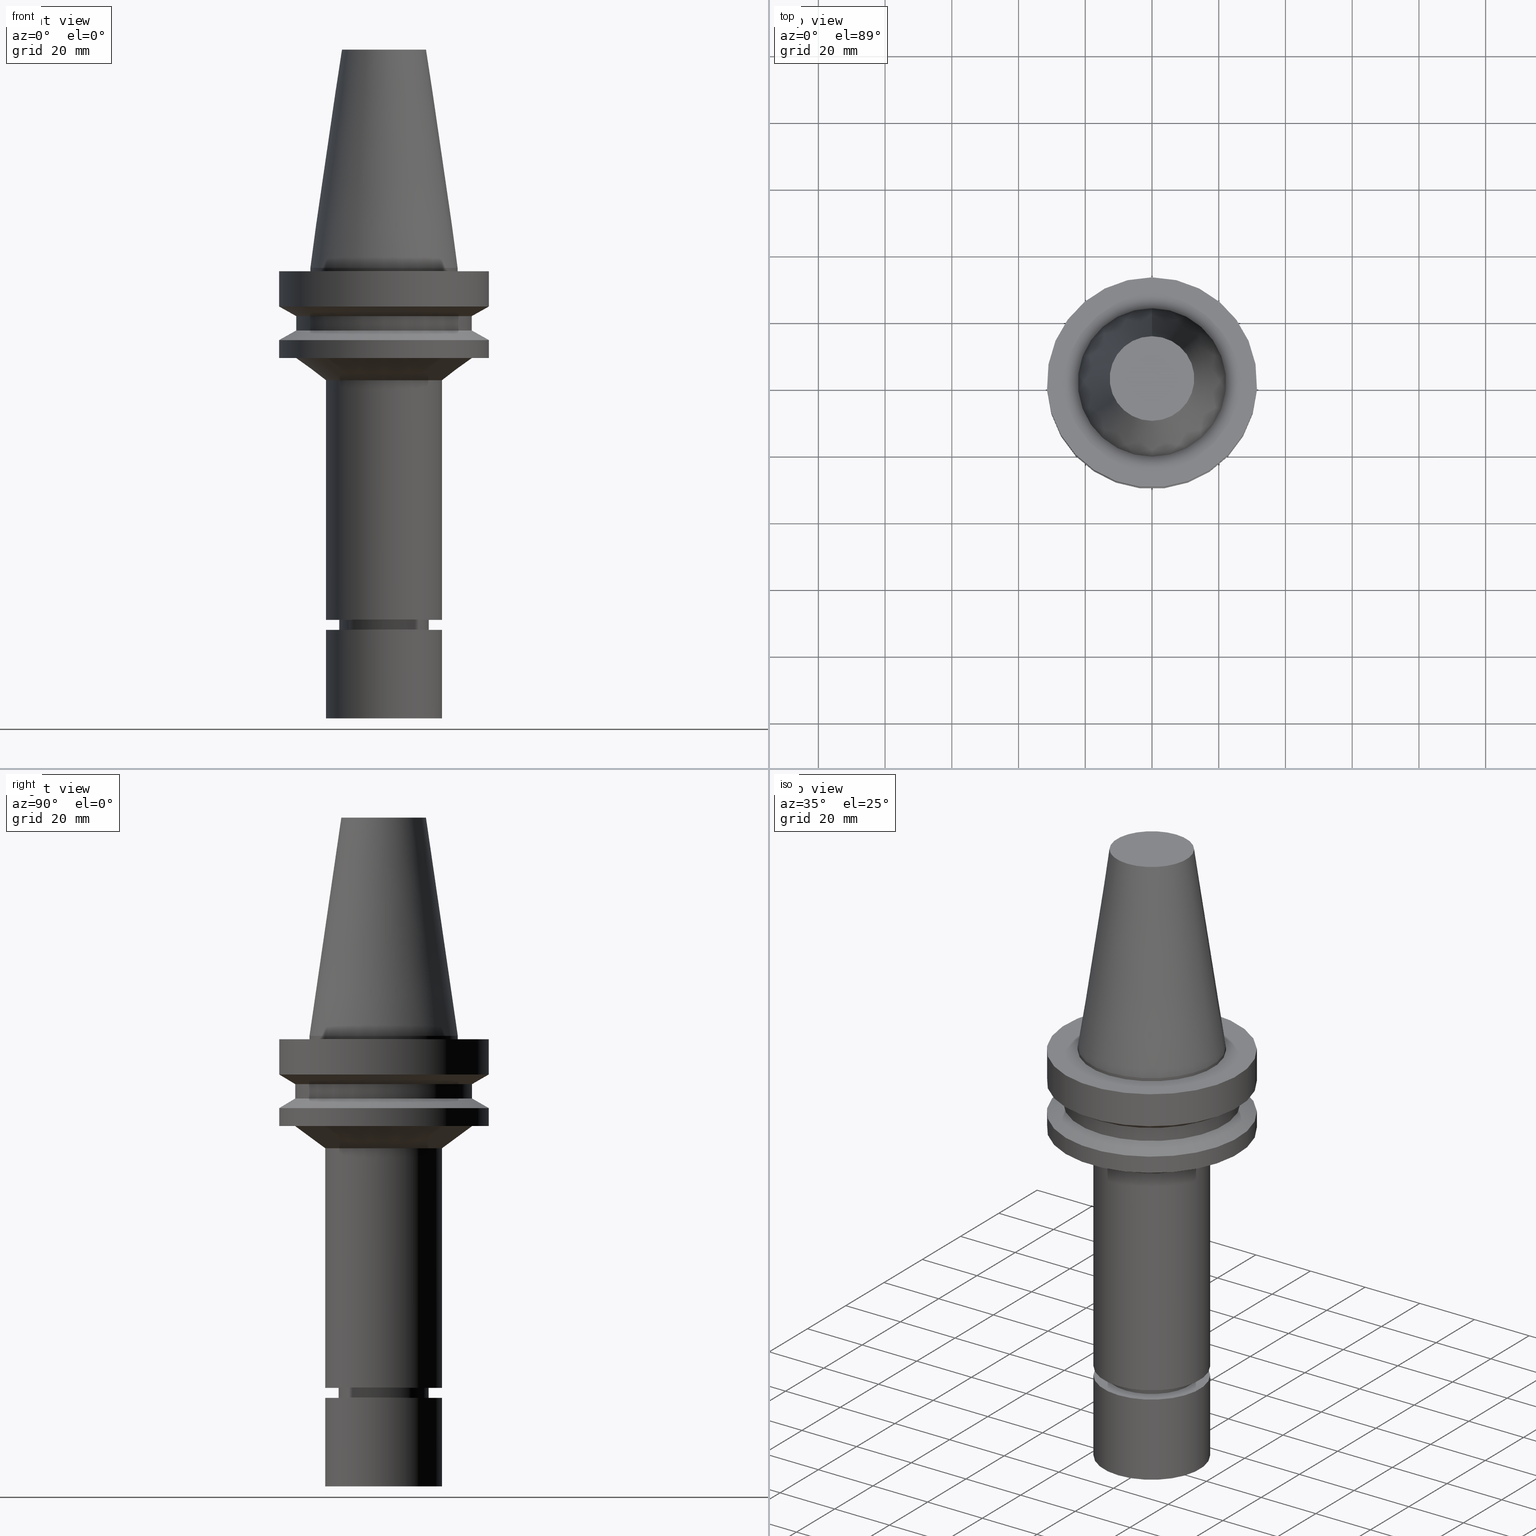
[diagram: canonical four-view strip — front | top / right | iso, engineering-drawing reading convention]
A machine part, canonical four-view strip (front | top / right | iso — engineering-drawing reading convention). The complete STEP part file that produces these views, byte-faithful:
ISO-10303-21;
HEADER;
FILE_DESCRIPTION((''),'1');
FILE_NAME('V:/90_\X2\53D65F9730C730FC30BF\X0\/00_\X2\6DE18DEF30C730FC30BF\X0\/ALL/BBT-BKUS\X2\FF76FF80FF9BFF78FF9E752852A05DE556F3\X0\201801/BBT40-MEGAER/BBT40-MEGAER20-135NL.stp','2018-02-07T02:03:15',(''),(''),'Spatial Interop R21 SP3','Kubotek KeyCreator 2011 V10.0.2 (22737)',' ');
FILE_SCHEMA(('automotive_design'));
ENDSEC;
DATA;
#1=MECHANICAL_DESIGN_GEOMETRIC_PRESENTATION_REPRESENTATION(' ',(#14,#15,#16,#17,#18,#19,#20,#21,#22,#23,#24,#25,#26,#27,#28,#29,#30,#31,#32,#33,#34,#35,#36,#37,#38,#39,#40,#41,#42,#43,#44,#45,#46,#47,#48,#49,#50,#51,#52,#53,#54,#55),#10);
#2=PRODUCT_DEFINITION_CONTEXT('',#56,'design');
#3=APPLICATION_PROTOCOL_DEFINITION('INTERNATIONAL STANDARD','automotive_design',1994,#56);
#4=PRODUCT_CATEGORY_RELATIONSHIP('NONE','NONE',#57,#58);
#5=SHAPE_DEFINITION_REPRESENTATION(#59,#60);
#6=PRODUCT_DEFINITION_CONTEXT('',#61,'design');
#7=APPLICATION_PROTOCOL_DEFINITION('INTERNATIONAL STANDARD','automotive_design',1994,#61);
#8=PRODUCT_CATEGORY_RELATIONSHIP('NONE','NONE',#62,#63);
#9=SHAPE_DEFINITION_REPRESENTATION(#64,#65);
#10= (GEOMETRIC_REPRESENTATION_CONTEXT(3)GLOBAL_UNCERTAINTY_ASSIGNED_CONTEXT((#68))GLOBAL_UNIT_ASSIGNED_CONTEXT((#70,#71,#72))REPRESENTATION_CONTEXT('NONE','WORKSPACE'));
#14=STYLED_ITEM('',(#74),#75);
#15=STYLED_ITEM('',(#76,#77),#78);
#16=STYLED_ITEM('',(#79,#80),#81);
#17=STYLED_ITEM('',(#82),#83);
#18=STYLED_ITEM('',(#84),#85);
#19=STYLED_ITEM('',(#86,#87),#88);
#20=STYLED_ITEM('',(#89),#90);
#21=STYLED_ITEM('',(#91),#92);
#22=STYLED_ITEM('',(#93),#94);
#23=STYLED_ITEM('',(#95,#96),#97);
#24=STYLED_ITEM('',(#98),#99);
#25=STYLED_ITEM('',(#100),#101);
#26=STYLED_ITEM('',(#102,#103),#104);
#27=STYLED_ITEM('',(#105,#106),#107);
#28=STYLED_ITEM('',(#108,#109),#110);
#29=STYLED_ITEM('',(#111,#112),#113);
#30=STYLED_ITEM('',(#114,#115),#116);
#31=STYLED_ITEM('',(#117,#118),#119);
#32=STYLED_ITEM('',(#120,#121),#122);
#33=STYLED_ITEM('',(#123,#124),#125);
#34=STYLED_ITEM('',(#126,#127),#128);
#35=STYLED_ITEM('',(#129,#130),#131);
#36=STYLED_ITEM('',(#132),#133);
#37=STYLED_ITEM('',(#134),#135);
#38=STYLED_ITEM('',(#136),#137);
#39=STYLED_ITEM('',(#138),#139);
#40=STYLED_ITEM('',(#140),#141);
#41=STYLED_ITEM('',(#142),#143);
#42=STYLED_ITEM('',(#144,#145),#146);
#43=STYLED_ITEM('',(#147),#148);
#44=STYLED_ITEM('',(#149,#150),#151);
#45=STYLED_ITEM('',(#152,#153),#154);
#46=STYLED_ITEM('',(#155,#156),#157);
#47=STYLED_ITEM('',(#158),#159);
#48=STYLED_ITEM('',(#160),#161);
#49=STYLED_ITEM('',(#162,#163),#164);
#50=STYLED_ITEM('',(#165,#166),#167);
#51=STYLED_ITEM('',(#168),#169);
#52=STYLED_ITEM('',(#170,#171),#172);
#53=STYLED_ITEM('',(#173,#174),#175);
#54=STYLED_ITEM('',(#176),#177);
#55=STYLED_ITEM('',(#178,#179),#180);
#56=APPLICATION_CONTEXT(' ');
#57=PRODUCT_CATEGORY('part','NONE');
#58=PRODUCT_RELATED_PRODUCT_CATEGORY('detail',' ',(#181));
#59=PRODUCT_DEFINITION_SHAPE('NONE','NONE',#182);
#60=ADVANCED_BREP_SHAPE_REPRESENTATION('Unnamed[1]',(#172,#183),#10);
#61=APPLICATION_CONTEXT(' ');
#62=PRODUCT_CATEGORY('part','NONE');
#63=PRODUCT_RELATED_PRODUCT_CATEGORY('detail',' ',(#184));
#64=PRODUCT_DEFINITION_SHAPE('NONE','NONE',#185);
#65=ADVANCED_BREP_SHAPE_REPRESENTATION('Unnamed[1]',(#157,#186),#10);
#68=UNCERTAINTY_MEASURE_WITH_UNIT(LENGTH_MEASURE(1.0E-006),#70,'','');
#70= (CONVERSION_BASED_UNIT('MILLIMETRE',#189)LENGTH_UNIT()NAMED_UNIT(#192));
#71= (NAMED_UNIT(#194)PLANE_ANGLE_UNIT()SI_UNIT($,.RADIAN.));
#72= (NAMED_UNIT(#194)SOLID_ANGLE_UNIT()SI_UNIT($,.STERADIAN.));
#74=PRESENTATION_STYLE_ASSIGNMENT((#200));
#75=EDGE_CURVE('Unnamed[1]',#201,#201,#202,.T.);
#76=PRESENTATION_STYLE_ASSIGNMENT((#203));
#77=PRESENTATION_STYLE_ASSIGNMENT((#204));
#78=ADVANCED_FACE('Unnamed[1]',(#205,#206),#207,.T.);
#79=PRESENTATION_STYLE_ASSIGNMENT((#208));
#80=PRESENTATION_STYLE_ASSIGNMENT((#209));
#81=ADVANCED_FACE('Unnamed[1]',(#210),#211,.T.);
#82=PRESENTATION_STYLE_ASSIGNMENT((#212));
#83=EDGE_CURVE('Unnamed[1]',#213,#213,#214,.T.);
#84=PRESENTATION_STYLE_ASSIGNMENT((#215));
#85=EDGE_CURVE('Unnamed[1]',#216,#216,#217,.T.);
#86=PRESENTATION_STYLE_ASSIGNMENT((#218));
#87=PRESENTATION_STYLE_ASSIGNMENT((#219));
#88=ADVANCED_FACE('Unnamed[1]',(#220,#221),#222,.T.);
#89=PRESENTATION_STYLE_ASSIGNMENT((#223));
#90=EDGE_CURVE('Unnamed[1]',#224,#224,#225,.T.);
#91=PRESENTATION_STYLE_ASSIGNMENT((#226));
#92=EDGE_CURVE('Unnamed[1]',#227,#227,#228,.T.);
#93=PRESENTATION_STYLE_ASSIGNMENT((#229));
#94=EDGE_CURVE('Unnamed[1]',#230,#230,#231,.T.);
#95=PRESENTATION_STYLE_ASSIGNMENT((#232));
#96=PRESENTATION_STYLE_ASSIGNMENT((#233));
#97=ADVANCED_FACE('Unnamed[1]',(#234,#235),#236,.T.);
#98=PRESENTATION_STYLE_ASSIGNMENT((#237));
#99=EDGE_CURVE('Unnamed[1]',#238,#238,#239,.T.);
#100=PRESENTATION_STYLE_ASSIGNMENT((#240));
#101=EDGE_CURVE('Unnamed[1]',#241,#241,#242,.T.);
#102=PRESENTATION_STYLE_ASSIGNMENT((#243));
#103=PRESENTATION_STYLE_ASSIGNMENT((#244));
#104=ADVANCED_FACE('Unnamed[1]',(#245,#246),#247,.T.);
#105=PRESENTATION_STYLE_ASSIGNMENT((#248));
#106=PRESENTATION_STYLE_ASSIGNMENT((#249));
#107=ADVANCED_FACE('Unnamed[1]',(#250,#251),#252,.T.);
#108=PRESENTATION_STYLE_ASSIGNMENT((#253));
#109=PRESENTATION_STYLE_ASSIGNMENT((#254));
#110=ADVANCED_FACE('Unnamed[1]',(#255,#256),#257,.T.);
#111=PRESENTATION_STYLE_ASSIGNMENT((#258));
#112=PRESENTATION_STYLE_ASSIGNMENT((#259));
#113=ADVANCED_FACE('Unnamed[1]',(#260,#261),#262,.T.);
#114=PRESENTATION_STYLE_ASSIGNMENT((#263));
#115=PRESENTATION_STYLE_ASSIGNMENT((#264));
#116=ADVANCED_FACE('Unnamed[1]',(#265,#266),#267,.T.);
#117=PRESENTATION_STYLE_ASSIGNMENT((#268));
#118=PRESENTATION_STYLE_ASSIGNMENT((#269));
#119=ADVANCED_FACE('Unnamed[1]',(#270,#271),#272,.T.);
#120=PRESENTATION_STYLE_ASSIGNMENT((#273));
#121=PRESENTATION_STYLE_ASSIGNMENT((#274));
#122=ADVANCED_FACE('Unnamed[1]',(#275,#276),#277,.T.);
#123=PRESENTATION_STYLE_ASSIGNMENT((#278));
#124=PRESENTATION_STYLE_ASSIGNMENT((#279));
#125=ADVANCED_FACE('Unnamed[1]',(#280),#281,.T.);
#126=PRESENTATION_STYLE_ASSIGNMENT((#282));
#127=PRESENTATION_STYLE_ASSIGNMENT((#283));
#128=ADVANCED_FACE('Unnamed[1]',(#284,#285),#286,.T.);
#129=PRESENTATION_STYLE_ASSIGNMENT((#287));
#130=PRESENTATION_STYLE_ASSIGNMENT((#288));
#131=ADVANCED_FACE('Unnamed[1]',(#289,#290),#291,.T.);
#132=PRESENTATION_STYLE_ASSIGNMENT((#292));
#133=EDGE_CURVE('Unnamed[1]',#293,#293,#294,.T.);
#134=PRESENTATION_STYLE_ASSIGNMENT((#295));
#135=EDGE_CURVE('Unnamed[1]',#296,#296,#297,.T.);
#136=PRESENTATION_STYLE_ASSIGNMENT((#298));
#137=EDGE_CURVE('Unnamed[1]',#299,#299,#300,.T.);
#138=PRESENTATION_STYLE_ASSIGNMENT((#301));
#139=EDGE_CURVE('Unnamed[1]',#302,#302,#303,.T.);
#140=PRESENTATION_STYLE_ASSIGNMENT((#304));
#141=EDGE_CURVE('Unnamed[1]',#305,#305,#306,.T.);
#142=PRESENTATION_STYLE_ASSIGNMENT((#307));
#143=EDGE_CURVE('Unnamed[1]',#308,#308,#309,.T.);
#144=PRESENTATION_STYLE_ASSIGNMENT((#310));
#145=PRESENTATION_STYLE_ASSIGNMENT((#311));
#146=ADVANCED_FACE('Unnamed[1]',(#312),#313,.T.);
#147=PRESENTATION_STYLE_ASSIGNMENT((#314));
#148=EDGE_CURVE('Unnamed[1]',#315,#315,#316,.T.);
#149=PRESENTATION_STYLE_ASSIGNMENT((#317));
#150=PRESENTATION_STYLE_ASSIGNMENT((#318));
#151=ADVANCED_FACE('Unnamed[1]',(#319,#320),#321,.T.);
#152=PRESENTATION_STYLE_ASSIGNMENT((#322));
#153=PRESENTATION_STYLE_ASSIGNMENT((#323));
#154=ADVANCED_FACE('Unnamed[1]',(#324,#325),#326,.T.);
#155=PRESENTATION_STYLE_ASSIGNMENT((#327));
#156=PRESENTATION_STYLE_ASSIGNMENT((#328));
#157=MANIFOLD_SOLID_BREP('Unnamed[1]',#329);
#158=PRESENTATION_STYLE_ASSIGNMENT((#330));
#159=EDGE_CURVE('Unnamed[1]',#331,#331,#332,.T.);
#160=PRESENTATION_STYLE_ASSIGNMENT((#333));
#161=EDGE_CURVE('Unnamed[1]',#334,#334,#335,.T.);
#162=PRESENTATION_STYLE_ASSIGNMENT((#336));
#163=PRESENTATION_STYLE_ASSIGNMENT((#337));
#164=ADVANCED_FACE('Unnamed[1]',(#338,#339),#340,.T.);
#165=PRESENTATION_STYLE_ASSIGNMENT((#341));
#166=PRESENTATION_STYLE_ASSIGNMENT((#342));
#167=ADVANCED_FACE('Unnamed[1]',(#343,#344),#345,.T.);
#168=PRESENTATION_STYLE_ASSIGNMENT((#346));
#169=EDGE_CURVE('Unnamed[1]',#347,#347,#348,.T.);
#170=PRESENTATION_STYLE_ASSIGNMENT((#349));
#171=PRESENTATION_STYLE_ASSIGNMENT((#350));
#172=MANIFOLD_SOLID_BREP('Unnamed[1]',#351);
#173=PRESENTATION_STYLE_ASSIGNMENT((#352));
#174=PRESENTATION_STYLE_ASSIGNMENT((#353));
#175=ADVANCED_FACE('Unnamed[1]',(#354),#355,.T.);
#176=PRESENTATION_STYLE_ASSIGNMENT((#356));
#177=EDGE_CURVE('Unnamed[1]',#357,#357,#358,.T.);
#178=PRESENTATION_STYLE_ASSIGNMENT((#359));
#179=PRESENTATION_STYLE_ASSIGNMENT((#360));
#180=ADVANCED_FACE('Unnamed[1]',(#361,#362),#363,.T.);
#181=PRODUCT('Unnamed[1]','Unnamed[1]','PART-Unnamed[1]-DESC',(#364));
#182=PRODUCT_DEFINITION('NONE','NONE',#365,#2);
#183=AXIS2_PLACEMENT_3D('',#366,#367,#368);
#184=PRODUCT('Unnamed[1]','Unnamed[1]','PART-Unnamed[1]-DESC',(#369));
#185=PRODUCT_DEFINITION('NONE','NONE',#370,#6);
#186=AXIS2_PLACEMENT_3D('',#371,#372,#373);
#189=LENGTH_MEASURE_WITH_UNIT(LENGTH_MEASURE(1.0),#374);
#192=DIMENSIONAL_EXPONENTS(1.0,0.0,0.0,0.0,0.0,0.0,0.0);
#194=DIMENSIONAL_EXPONENTS(0.0,0.0,0.0,0.0,0.0,0.0,0.0);
#200=CURVE_STYLE('',#375,POSITIVE_LENGTH_MEASURE(1000.0),#376);
#201=VERTEX_POINT('',#377);
#202=CIRCLE('',#378,17.4999999999998);
#203=SURFACE_STYLE_USAGE(.BOTH.,#379);
#204=CURVE_STYLE('',#380,POSITIVE_LENGTH_MEASURE(1000.0),#381);
#205=FACE_BOUND('',#382,.T.);
#206=FACE_BOUND('',#383,.T.);
#207=CONICAL_SURFACE('',#384,22.0222908518337,0.935754396976015);
#208=SURFACE_STYLE_USAGE(.BOTH.,#385);
#209=CURVE_STYLE('',#386,POSITIVE_LENGTH_MEASURE(1000.0),#387);
#210=FACE_OUTER_BOUND('',#388,.T.);
#211=PLANE('',#389);
#212=CURVE_STYLE('',#390,POSITIVE_LENGTH_MEASURE(1000.0),#391);
#213=VERTEX_POINT('',#392);
#214=CIRCLE('',#393,13.5000000000004);
#215=CURVE_STYLE('',#394,POSITIVE_LENGTH_MEASURE(1000.0),#395);
#216=VERTEX_POINT('',#396);
#217=CIRCLE('',#397,22.225);
#218=SURFACE_STYLE_USAGE(.BOTH.,#398);
#219=CURVE_STYLE('',#399,POSITIVE_LENGTH_MEASURE(1000.0),#400);
#220=FACE_OUTER_BOUND('',#401,.T.);
#221=FACE_BOUND('',#402,.T.);
#222=PLANE('',#403);
#223=CURVE_STYLE('',#404,POSITIVE_LENGTH_MEASURE(1000.0),#405);
#224=VERTEX_POINT('',#406);
#225=CIRCLE('',#407,31.5000000000003);
#226=CURVE_STYLE('',#408,POSITIVE_LENGTH_MEASURE(1000.0),#409);
#227=VERTEX_POINT('',#410);
#228=CIRCLE('',#411,17.5000000000009);
#229=CURVE_STYLE('',#412,POSITIVE_LENGTH_MEASURE(1000.0),#413);
#230=VERTEX_POINT('',#414);
#231=CIRCLE('',#415,11.3999999999977);
#232=SURFACE_STYLE_USAGE(.BOTH.,#416);
#233=CURVE_STYLE('',#417,POSITIVE_LENGTH_MEASURE(1000.0),#418);
#234=FACE_BOUND('',#419,.T.);
#235=FACE_OUTER_BOUND('',#420,.T.);
#236=PLANE('',#421);
#237=CURVE_STYLE('',#422,POSITIVE_LENGTH_MEASURE(1000.0),#423);
#238=VERTEX_POINT('',#424);
#239=CIRCLE('',#425,26.5445817036666);
#240=CURVE_STYLE('',#426,POSITIVE_LENGTH_MEASURE(1000.0),#427);
#241=VERTEX_POINT('',#428);
#242=CIRCLE('',#429,12.4999999999998);
#243=SURFACE_STYLE_USAGE(.BOTH.,#430);
#244=CURVE_STYLE('',#431,POSITIVE_LENGTH_MEASURE(1000.0),#432);
#245=FACE_BOUND('',#433,.T.);
#246=FACE_BOUND('',#434,.T.);
#247=CONICAL_SURFACE('',#435,29.0000000000003,1.04719755119651);
#248=SURFACE_STYLE_USAGE(.BOTH.,#436);
#249=CURVE_STYLE('',#437,POSITIVE_LENGTH_MEASURE(1000.0),#438);
#250=FACE_BOUND('',#439,.T.);
#251=FACE_BOUND('',#440,.T.);
#252=CYLINDRICAL_SURFACE('',#441,31.5000000000005);
#253=SURFACE_STYLE_USAGE(.BOTH.,#442);
#254=CURVE_STYLE('',#443,POSITIVE_LENGTH_MEASURE(1000.0),#444);
#255=FACE_BOUND('',#445,.T.);
#256=FACE_OUTER_BOUND('',#446,.T.);
#257=PLANE('',#447);
#258=SURFACE_STYLE_USAGE(.BOTH.,#448);
#259=CURVE_STYLE('',#449,POSITIVE_LENGTH_MEASURE(1000.0),#450);
#260=FACE_BOUND('',#451,.T.);
#261=FACE_BOUND('',#452,.T.);
#262=CYLINDRICAL_SURFACE('',#453,17.5000000000003);
#263=SURFACE_STYLE_USAGE(.BOTH.,#454);
#264=CURVE_STYLE('',#455,POSITIVE_LENGTH_MEASURE(1000.0),#456);
#265=FACE_BOUND('',#457,.T.);
#266=FACE_BOUND('',#458,.T.);
#267=CYLINDRICAL_SURFACE('',#459,31.5);
#268=SURFACE_STYLE_USAGE(.BOTH.,#460);
#269=CURVE_STYLE('',#461,POSITIVE_LENGTH_MEASURE(1000.0),#462);
#270=FACE_BOUND('',#463,.T.);
#271=FACE_BOUND('',#464,.T.);
#272=CONICAL_SURFACE('',#465,11.9499999999987,0.523598775598648);
#273=SURFACE_STYLE_USAGE(.BOTH.,#466);
#274=CURVE_STYLE('',#467,POSITIVE_LENGTH_MEASURE(1000.0),#468);
#275=FACE_BOUND('',#469,.T.);
#276=FACE_BOUND('',#470,.T.);
#277=CYLINDRICAL_SURFACE('',#471,22.225);
#278=SURFACE_STYLE_USAGE(.BOTH.,#472);
#279=CURVE_STYLE('',#473,POSITIVE_LENGTH_MEASURE(1000.0),#474);
#280=FACE_OUTER_BOUND('',#475,.T.);
#281=PLANE('',#476);
#282=SURFACE_STYLE_USAGE(.BOTH.,#477);
#283=CURVE_STYLE('',#478,POSITIVE_LENGTH_MEASURE(1000.0),#479);
#284=FACE_BOUND('',#480,.T.);
#285=FACE_BOUND('',#481,.T.);
#286=CONICAL_SURFACE('',#482,28.9999999999999,1.04719755119657);
#287=SURFACE_STYLE_USAGE(.BOTH.,#483);
#288=CURVE_STYLE('',#484,POSITIVE_LENGTH_MEASURE(1000.0),#485);
#289=FACE_BOUND('',#486,.T.);
#290=FACE_BOUND('',#487,.T.);
#291=CYLINDRICAL_SURFACE('',#488,12.4999999999998);
#292=CURVE_STYLE('',#489,POSITIVE_LENGTH_MEASURE(1000.0),#490);
#293=VERTEX_POINT('',#491);
#294=CIRCLE('',#492,12.6875000000001);
#295=CURVE_STYLE('',#493,POSITIVE_LENGTH_MEASURE(1000.0),#494);
#296=VERTEX_POINT('',#495);
#297=CIRCLE('',#496,31.5000000000003);
#298=CURVE_STYLE('',#497,POSITIVE_LENGTH_MEASURE(1000.0),#498);
#299=VERTEX_POINT('',#499);
#300=CIRCLE('',#500,26.4999999999994);
#301=CURVE_STYLE('',#501,POSITIVE_LENGTH_MEASURE(1000.0),#502);
#302=VERTEX_POINT('',#503);
#303=CIRCLE('',#504,12.4999999999997);
#304=CURVE_STYLE('',#505,POSITIVE_LENGTH_MEASURE(1000.0),#506);
#305=VERTEX_POINT('',#507);
#306=CIRCLE('',#508,22.225);
#307=CURVE_STYLE('',#509,POSITIVE_LENGTH_MEASURE(1000.0),#510);
#308=VERTEX_POINT('',#511);
#309=CIRCLE('',#512,13.4999999999907);
#310=SURFACE_STYLE_USAGE(.BOTH.,#513);
#311=CURVE_STYLE('',#514,POSITIVE_LENGTH_MEASURE(1000.0),#515);
#312=FACE_OUTER_BOUND('',#516,.T.);
#313=PLANE('',#517);
#314=CURVE_STYLE('',#518,POSITIVE_LENGTH_MEASURE(1000.0),#519);
#315=VERTEX_POINT('',#520);
#316=CIRCLE('',#521,17.5);
#317=SURFACE_STYLE_USAGE(.BOTH.,#522);
#318=CURVE_STYLE('',#523,POSITIVE_LENGTH_MEASURE(1000.0),#524);
#319=FACE_BOUND('',#525,.T.);
#320=FACE_BOUND('',#526,.T.);
#321=CONICAL_SURFACE('',#527,17.45625,0.144812498238936);
#322=SURFACE_STYLE_USAGE(.BOTH.,#528);
#323=CURVE_STYLE('',#529,POSITIVE_LENGTH_MEASURE(1000.0),#530);
#324=FACE_BOUND('',#531,.T.);
#325=FACE_BOUND('',#532,.T.);
#326=CYLINDRICAL_SURFACE('',#533,26.4999999999997);
#327=SURFACE_STYLE_USAGE(.BOTH.,#534);
#328=CURVE_STYLE('',#535,POSITIVE_LENGTH_MEASURE(1000.0),#536);
#329=CLOSED_SHELL('',(#81,#146,#164));
#330=CURVE_STYLE('',#537,POSITIVE_LENGTH_MEASURE(1000.0),#538);
#331=VERTEX_POINT('',#539);
#332=CIRCLE('',#540,17.5);
#333=CURVE_STYLE('',#541,POSITIVE_LENGTH_MEASURE(1000.0),#542);
#334=VERTEX_POINT('',#543);
#335=CIRCLE('',#544,31.4999999999996);
#336=SURFACE_STYLE_USAGE(.BOTH.,#545);
#337=CURVE_STYLE('',#546,POSITIVE_LENGTH_MEASURE(1000.0),#547);
#338=FACE_BOUND('',#548,.T.);
#339=FACE_BOUND('',#549,.T.);
#340=CYLINDRICAL_SURFACE('',#550,17.5);
#341=SURFACE_STYLE_USAGE(.BOTH.,#551);
#342=CURVE_STYLE('',#552,POSITIVE_LENGTH_MEASURE(1000.0),#553);
#343=FACE_BOUND('',#554,.T.);
#344=FACE_BOUND('',#555,.T.);
#345=CYLINDRICAL_SURFACE('',#556,13.4999999999956);
#346=CURVE_STYLE('',#557,POSITIVE_LENGTH_MEASURE(1000.0),#558);
#347=VERTEX_POINT('',#559);
#348=CIRCLE('',#560,31.5000000000006);
#349=SURFACE_STYLE_USAGE(.BOTH.,#561);
#350=CURVE_STYLE('',#562,POSITIVE_LENGTH_MEASURE(1000.0),#563);
#351=CLOSED_SHELL('',(#125,#151,#122,#88,#116,#128,#154,#104,#107,#110,#78,#113,#97,#167,#180,#131,#119,#175));
#352=SURFACE_STYLE_USAGE(.BOTH.,#564);
#353=CURVE_STYLE('',#565,POSITIVE_LENGTH_MEASURE(1000.0),#566);
#354=FACE_OUTER_BOUND('',#567,.T.);
#355=PLANE('',#568);
#356=CURVE_STYLE('',#569,POSITIVE_LENGTH_MEASURE(1000.0),#570);
#357=VERTEX_POINT('',#571);
#358=CIRCLE('',#572,26.5);
#359=SURFACE_STYLE_USAGE(.BOTH.,#573);
#360=CURVE_STYLE('',#574,POSITIVE_LENGTH_MEASURE(1000.0),#575);
#361=FACE_BOUND('',#576,.T.);
#362=FACE_BOUND('',#577,.T.);
#363=CONICAL_SURFACE('',#578,13.0000000000001,1.04719755119479);
#364=PRODUCT_CONTEXT('',#56,'mechanical');
#365=PRODUCT_DEFINITION_FORMATION_WITH_SPECIFIED_SOURCE(' ','NONE',#181,.NOT_KNOWN.);
#366=CARTESIAN_POINT('',(0.0,0.0,0.0));
#367=DIRECTION('',(0.0,0.0,1.0));
#368=DIRECTION('',(1.0,0.0,0.0));
#369=PRODUCT_CONTEXT('',#61,'mechanical');
#370=PRODUCT_DEFINITION_FORMATION_WITH_SPECIFIED_SOURCE(' ','NONE',#184,.NOT_KNOWN.);
#371=CARTESIAN_POINT('',(0.0,0.0,0.0));
#372=DIRECTION('',(0.0,0.0,1.0));
#373=DIRECTION('',(1.0,0.0,0.0));
#374= (NAMED_UNIT(#192)LENGTH_UNIT()SI_UNIT(.MILLI.,.METRE.));
#375=DRAUGHTING_PRE_DEFINED_CURVE_FONT('continuous');
#376=COLOUR_RGB('',0.0,1.0,0.0);
#377=CARTESIAN_POINT('',(6.46001186550227E-015,17.4999999999999,-105.5));
#378=AXIS2_PLACEMENT_3D('',#580,#581,#582);
#379=SURFACE_SIDE_STYLE('',(#583));
#380=DRAUGHTING_PRE_DEFINED_CURVE_FONT('continuous');
#381=COLOUR_RGB('',0.0,1.0,0.0);
#382=EDGE_LOOP('',(#584));
#383=EDGE_LOOP('',(#585));
#384=AXIS2_PLACEMENT_3D('',#586,#587,#588);
#385=SURFACE_SIDE_STYLE('',(#589));
#386=DRAUGHTING_PRE_DEFINED_CURVE_FONT('continuous');
#387=COLOUR_RGB('',0.0,1.0,0.0);
#388=EDGE_LOOP('',(#590));
#389=AXIS2_PLACEMENT_3D('',#591,#592,#593);
#390=DRAUGHTING_PRE_DEFINED_CURVE_FONT('continuous');
#391=COLOUR_RGB('',0.0,1.0,0.0);
#392=CARTESIAN_POINT('',(6.81652644100301E-015,13.5000000000005,-111.322324865405));
#393=AXIS2_PLACEMENT_3D('',#594,#595,#596);
#394=DRAUGHTING_PRE_DEFINED_CURVE_FONT('continuous');
#395=COLOUR_RGB('',0.0,1.0,0.0);
#396=CARTESIAN_POINT('',(1.71319921032766E-029,22.2250000000001,-2.8153873565375E-013));
#397=AXIS2_PLACEMENT_3D('',#597,#598,#599);
#398=SURFACE_SIDE_STYLE('',(#600));
#399=DRAUGHTING_PRE_DEFINED_CURVE_FONT('continuous');
#400=COLOUR_RGB('',0.0,1.0,0.0);
#401=EDGE_LOOP('',(#601));
#402=EDGE_LOOP('',(#602));
#403=AXIS2_PLACEMENT_3D('',#603,#604,#605);
#404=DRAUGHTING_PRE_DEFINED_CURVE_FONT('continuous');
#405=COLOUR_RGB('',0.0,1.0,0.0);
#406=CARTESIAN_POINT('',(1.65327317884891E-015,31.5000000000004,-26.9999999999998));
#407=AXIS2_PLACEMENT_3D('',#606,#607,#608);
#408=DRAUGHTING_PRE_DEFINED_CURVE_FONT('continuous');
#409=COLOUR_RGB('',0.0,1.0,0.0);
#410=CARTESIAN_POINT('',(2.0613647219023E-015,17.5000000000009,-33.6646406676194));
#411=AXIS2_PLACEMENT_3D('',#609,#610,#611);
#412=DRAUGHTING_PRE_DEFINED_CURVE_FONT('continuous');
#413=COLOUR_RGB('',0.0,1.0,0.0);
#414=CARTESIAN_POINT('',(7.66628896266244E-015,11.3999999999978,-125.2));
#415=AXIS2_PLACEMENT_3D('',#612,#613,#614);
#416=SURFACE_SIDE_STYLE('',(#615));
#417=DRAUGHTING_PRE_DEFINED_CURVE_FONT('continuous');
#418=COLOUR_RGB('',0.0,1.0,0.0);
#419=EDGE_LOOP('',(#616));
#420=EDGE_LOOP('',(#617));
#421=AXIS2_PLACEMENT_3D('',#618,#619,#620);
#422=DRAUGHTING_PRE_DEFINED_CURVE_FONT('continuous');
#423=COLOUR_RGB('',0.0,1.0,0.0);
#424=CARTESIAN_POINT('',(1.65327317884891E-015,26.5445817036666,-26.9999999999998));
#425=AXIS2_PLACEMENT_3D('',#621,#622,#623);
#426=DRAUGHTING_PRE_DEFINED_CURVE_FONT('continuous');
#427=COLOUR_RGB('',0.0,1.0,0.0);
#428=CARTESIAN_POINT('',(6.85187894896067E-015,12.4999999999999,-111.899675134597));
#429=AXIS2_PLACEMENT_3D('',#624,#625,#626);
#430=SURFACE_SIDE_STYLE('',(#627));
#431=DRAUGHTING_PRE_DEFINED_CURVE_FONT('continuous');
#432=COLOUR_RGB('',0.0,1.0,0.0);
#433=EDGE_LOOP('',(#628));
#434=EDGE_LOOP('',(#629));
#435=AXIS2_PLACEMENT_3D('',#630,#631,#632);
#436=SURFACE_SIDE_STYLE('',(#633));
#437=DRAUGHTING_PRE_DEFINED_CURVE_FONT('continuous');
#438=COLOUR_RGB('',0.0,1.0,0.0);
#439=EDGE_LOOP('',(#634));
#440=EDGE_LOOP('',(#635));
#441=AXIS2_PLACEMENT_3D('',#636,#637,#638);
#442=SURFACE_SIDE_STYLE('',(#639));
#443=DRAUGHTING_PRE_DEFINED_CURVE_FONT('continuous');
#444=COLOUR_RGB('',0.0,1.0,0.0);
#445=EDGE_LOOP('',(#640));
#446=EDGE_LOOP('',(#641));
#447=AXIS2_PLACEMENT_3D('',#642,#643,#644);
#448=SURFACE_SIDE_STYLE('',(#645));
#449=DRAUGHTING_PRE_DEFINED_CURVE_FONT('continuous');
#450=COLOUR_RGB('',0.0,1.0,0.0);
#451=EDGE_LOOP('',(#646));
#452=EDGE_LOOP('',(#647));
#453=AXIS2_PLACEMENT_3D('',#648,#649,#650);
#454=SURFACE_SIDE_STYLE('',(#651));
#455=DRAUGHTING_PRE_DEFINED_CURVE_FONT('continuous');
#456=COLOUR_RGB('',0.0,1.0,0.0);
#457=EDGE_LOOP('',(#652));
#458=EDGE_LOOP('',(#653));
#459=AXIS2_PLACEMENT_3D('',#654,#655,#656);
#460=SURFACE_SIDE_STYLE('',(#657));
#461=DRAUGHTING_PRE_DEFINED_CURVE_FONT('continuous');
#462=COLOUR_RGB('',0.0,1.0,0.0);
#463=EDGE_LOOP('',(#658));
#464=EDGE_LOOP('',(#659));
#465=AXIS2_PLACEMENT_3D('',#660,#661,#662);
#466=SURFACE_SIDE_STYLE('',(#663));
#467=DRAUGHTING_PRE_DEFINED_CURVE_FONT('continuous');
#468=COLOUR_RGB('',0.0,1.0,0.0);
#469=EDGE_LOOP('',(#664));
#470=EDGE_LOOP('',(#665));
#471=AXIS2_PLACEMENT_3D('',#666,#667,#668);
#472=SURFACE_SIDE_STYLE('',(#669));
#473=DRAUGHTING_PRE_DEFINED_CURVE_FONT('continuous');
#474=COLOUR_RGB('',0.0,1.0,0.0);
#475=EDGE_LOOP('',(#670));
#476=AXIS2_PLACEMENT_3D('',#671,#672,#673);
#477=SURFACE_SIDE_STYLE('',(#674));
#478=DRAUGHTING_PRE_DEFINED_CURVE_FONT('continuous');
#479=COLOUR_RGB('',0.0,1.0,0.0);
#480=EDGE_LOOP('',(#675));
#481=EDGE_LOOP('',(#676));
#482=AXIS2_PLACEMENT_3D('',#677,#678,#679);
#483=SURFACE_SIDE_STYLE('',(#680));
#484=DRAUGHTING_PRE_DEFINED_CURVE_FONT('continuous');
#485=COLOUR_RGB('',0.0,1.0,0.0);
#486=EDGE_LOOP('',(#681));
#487=EDGE_LOOP('',(#682));
#488=AXIS2_PLACEMENT_3D('',#683,#684,#685);
#489=DRAUGHTING_PRE_DEFINED_CURVE_FONT('continuous');
#490=COLOUR_RGB('',0.0,1.0,0.0);
#491=CARTESIAN_POINT('',(-4.00459503321185E-015,12.6875000000002,65.4000000000001));
#492=AXIS2_PLACEMENT_3D('',#686,#687,#688);
#493=DRAUGHTING_PRE_DEFINED_CURVE_FONT('continuous');
#494=COLOUR_RGB('',0.0,1.0,0.0);
#495=CARTESIAN_POINT('',(7.08182973902924E-016,31.5000000000004,-11.5655056526664));
#496=AXIS2_PLACEMENT_3D('',#689,#690,#691);
#497=DRAUGHTING_PRE_DEFINED_CURVE_FONT('continuous');
#498=COLOUR_RGB('',0.0,1.0,0.0);
#499=CARTESIAN_POINT('',(8.8494551369045E-016,26.4999999999995,-14.4522569986152));
#500=AXIS2_PLACEMENT_3D('',#692,#693,#694);
#501=DRAUGHTING_PRE_DEFINED_CURVE_FONT('continuous');
#502=COLOUR_RGB('',0.0,1.0,0.0);
#503=CARTESIAN_POINT('',(7.54962568640258E-015,12.4999999999998,-123.294744111672));
#504=AXIS2_PLACEMENT_3D('',#695,#696,#697);
#505=DRAUGHTING_PRE_DEFINED_CURVE_FONT('continuous');
#506=COLOUR_RGB('',0.0,1.0,0.0);
#507=CARTESIAN_POINT('',(6.12323399573622E-017,22.2250000000001,-0.999999999999912));
#508=AXIS2_PLACEMENT_3D('',#698,#699,#700);
#509=DRAUGHTING_PRE_DEFINED_CURVE_FONT('continuous');
#510=COLOUR_RGB('',0.0,1.0,0.0);
#511=CARTESIAN_POINT('',(6.46001186550226E-015,13.4999999999908,-105.5));
#512=AXIS2_PLACEMENT_3D('',#701,#702,#703);
#513=SURFACE_SIDE_STYLE('',(#704));
#514=DRAUGHTING_PRE_DEFINED_CURVE_FONT('continuous');
#515=COLOUR_RGB('',0.0,1.0,0.0);
#516=EDGE_LOOP('',(#705));
#517=AXIS2_PLACEMENT_3D('',#706,#707,#708);
#518=DRAUGHTING_PRE_DEFINED_CURVE_FONT('continuous');
#519=COLOUR_RGB('',0.0,1.0,0.0);
#520=CARTESIAN_POINT('',(6.64370981970575E-015,17.5,-108.500015258789));
#521=AXIS2_PLACEMENT_3D('',#709,#710,#711);
#522=SURFACE_SIDE_STYLE('',(#712));
#523=DRAUGHTING_PRE_DEFINED_CURVE_FONT('continuous');
#524=COLOUR_RGB('',0.0,1.0,0.0);
#525=EDGE_LOOP('',(#713));
#526=EDGE_LOOP('',(#714));
#527=AXIS2_PLACEMENT_3D('',#715,#716,#717);
#528=SURFACE_SIDE_STYLE('',(#718));
#529=DRAUGHTING_PRE_DEFINED_CURVE_FONT('continuous');
#530=COLOUR_RGB('',0.0,1.0,0.0);
#531=EDGE_LOOP('',(#719));
#532=EDGE_LOOP('',(#720));
#533=AXIS2_PLACEMENT_3D('',#721,#722,#723);
#534=SURFACE_SIDE_STYLE('',(#724));
#535=DRAUGHTING_PRE_DEFINED_CURVE_FONT('continuous');
#536=COLOUR_RGB('',0.0,1.0,0.0);
#537=DRAUGHTING_PRE_DEFINED_CURVE_FONT('continuous');
#538=COLOUR_RGB('',0.0,1.0,0.0);
#539=CARTESIAN_POINT('',(8.26636589424463E-015,17.5,-135.0));
#540=AXIS2_PLACEMENT_3D('',#725,#726,#727);
#541=DRAUGHTING_PRE_DEFINED_CURVE_FONT('continuous');
#542=COLOUR_RGB('',0.0,1.0,0.0);
#543=CARTESIAN_POINT('',(6.12323399573568E-017,31.4999999999997,-0.999999999999825));
#544=AXIS2_PLACEMENT_3D('',#728,#729,#730);
#545=SURFACE_SIDE_STYLE('',(#731));
#546=DRAUGHTING_PRE_DEFINED_CURVE_FONT('continuous');
#547=COLOUR_RGB('',0.0,1.0,0.0);
#548=EDGE_LOOP('',(#732));
#549=EDGE_LOOP('',(#733));
#550=AXIS2_PLACEMENT_3D('',#734,#735,#736);
#551=SURFACE_SIDE_STYLE('',(#737));
#552=DRAUGHTING_PRE_DEFINED_CURVE_FONT('continuous');
#553=COLOUR_RGB('',0.0,1.0,0.0);
#554=EDGE_LOOP('',(#738));
#555=EDGE_LOOP('',(#739));
#556=AXIS2_PLACEMENT_3D('',#740,#741,#742);
#557=DRAUGHTING_PRE_DEFINED_CURVE_FONT('continuous');
#558=COLOUR_RGB('',0.0,1.0,0.0);
#559=CARTESIAN_POINT('',(1.32473071268174E-015,31.5000000000007,-21.6344943473346));
#560=AXIS2_PLACEMENT_3D('',#743,#744,#745);
#561=SURFACE_SIDE_STYLE('',(#746));
#562=DRAUGHTING_PRE_DEFINED_CURVE_FONT('continuous');
#563=COLOUR_RGB('',0.0,1.0,0.0);
#564=SURFACE_SIDE_STYLE('',(#747));
#565=DRAUGHTING_PRE_DEFINED_CURVE_FONT('continuous');
#566=COLOUR_RGB('',0.0,1.0,0.0);
#567=EDGE_LOOP('',(#748));
#568=AXIS2_PLACEMENT_3D('',#749,#750,#751);
#569=DRAUGHTING_PRE_DEFINED_CURVE_FONT('continuous');
#570=COLOUR_RGB('',0.0,1.0,0.0);
#571=CARTESIAN_POINT('',(1.1479681728942E-015,26.5,-18.7477430013855));
#572=AXIS2_PLACEMENT_3D('',#752,#753,#754);
#573=SURFACE_SIDE_STYLE('',(#755));
#574=DRAUGHTING_PRE_DEFINED_CURVE_FONT('continuous');
#575=COLOUR_RGB('',0.0,1.0,0.0);
#576=EDGE_LOOP('',(#756));
#577=EDGE_LOOP('',(#757));
#578=AXIS2_PLACEMENT_3D('',#758,#759,#760);
#580=CARTESIAN_POINT('',(6.46001186550227E-015,6.10434254362548E-014,-105.5));
#581=DIRECTION('',(6.12323399573676E-017,-9.38040710728317E-017,-1.0));
#582=DIRECTION('',(9.16690038541405E-034,1.0,-9.38040710728317E-017));
#583=SURFACE_STYLE_FILL_AREA(#761);
#584=ORIENTED_EDGE('',*,*,#92,.F.);
#585=ORIENTED_EDGE('',*,*,#99,.T.);
#586=CARTESIAN_POINT('',(1.85731895037561E-015,6.80944598020363E-014,-30.3323203338096));
#587=DIRECTION('',(-6.12323399573677E-017,9.38040710727308E-017,1.0));
#588=DIRECTION('',(9.16690038537496E-034,1.0,-9.38040710727308E-017));
#589=SURFACE_STYLE_FILL_AREA(#762);
#590=ORIENTED_EDGE('',*,*,#159,.T.);
#591=CARTESIAN_POINT('',(8.26636589424463E-015,8.75000000000004,-135.0));
#592=DIRECTION('',(6.12323399573677E-017,1.22464679914735E-016,-1.0));
#593=DIRECTION('',(-1.23259516440783E-032,1.0,1.22464679914735E-016));
#594=CARTESIAN_POINT('',(6.81652644100301E-015,6.04972676607717E-014,-111.322324865405));
#595=DIRECTION('',(6.12323399573677E-017,-9.38040710727149E-017,-1.0));
#596=DIRECTION('',(9.16690038548579E-034,1.0,-9.38040710727149E-017));
#597=CARTESIAN_POINT('',(1.74032777401202E-029,7.09397549344305E-014,-2.8421709430404E-013));
#598=DIRECTION('',(6.12323399573677E-017,-9.38040710727522E-017,-1.0));
#599=DIRECTION('',(9.16690038542525E-034,1.0,-9.38040710727522E-017));
#600=SURFACE_STYLE_FILL_AREA(#763);
#601=ORIENTED_EDGE('',*,*,#161,.F.);
#602=ORIENTED_EDGE('',*,*,#141,.T.);
#603=CARTESIAN_POINT('',(6.12323399573595E-017,26.8624999999999,-0.999999999999869));
#604=DIRECTION('',(-6.12323399573677E-017,-9.35138060429241E-015,1.0));
#605=DIRECTION('',(5.77434068963536E-031,-1.0,-9.35138060429241E-015));
#606=CARTESIAN_POINT('',(1.65327317884891E-015,6.84070450154662E-014,-26.9999999999998));
#607=DIRECTION('',(6.12323399573677E-017,-9.38040710726656E-017,-1.0));
#608=DIRECTION('',(9.16690038527719E-034,1.0,-9.38040710726656E-017));
#609=CARTESIAN_POINT('',(2.0613647219023E-015,6.77818745886064E-014,-33.6646406676194));
#610=DIRECTION('',(6.12323399573677E-017,-9.3804071072826E-017,-1.0));
#611=DIRECTION('',(9.16690038551599E-034,1.0,-9.3804071072826E-017));
#612=CARTESIAN_POINT('',(7.66628896266244E-015,5.91954852361215E-014,-125.2));
#613=DIRECTION('',(6.12323399573677E-017,-9.38040710727836E-017,-1.0));
#614=DIRECTION('',(9.16690038552634E-034,1.0,-9.38040710727836E-017));
#615=SURFACE_STYLE_FILL_AREA(#764);
#616=ORIENTED_EDGE('',*,*,#143,.F.);
#617=ORIENTED_EDGE('',*,*,#75,.T.);
#618=CARTESIAN_POINT('',(6.46001186550227E-015,15.4999999999953,-105.5));
#619=DIRECTION('',(6.12323399573677E-017,-2.47465310716324E-014,-1.0));
#620=DIRECTION('',(1.51046085061299E-030,1.0,-2.47465310716324E-014));
#621=CARTESIAN_POINT('',(1.65327317884891E-015,6.84070450154662E-014,-26.9999999999998));
#622=DIRECTION('',(6.12323399573677E-017,-9.38040710727897E-017,-1.0));
#623=DIRECTION('',(9.16690038548471E-034,1.0,-9.38040710727897E-017));
#624=CARTESIAN_POINT('',(6.85187894896067E-015,6.04431098550865E-014,-111.899675134597));
#625=DIRECTION('',(6.12323399573677E-017,-9.38040710727764E-017,-1.0));
#626=DIRECTION('',(9.16690038540381E-034,1.0,-9.38040710727764E-017));
#627=SURFACE_STYLE_FILL_AREA(#765);
#628=ORIENTED_EDGE('',*,*,#169,.F.);
#629=ORIENTED_EDGE('',*,*,#177,.T.);
#630=CARTESIAN_POINT('',(1.23634944278797E-015,6.90457458032624E-014,-20.1911186743601));
#631=DIRECTION('',(6.12323399573677E-017,-9.38040710727787E-017,-1.0));
#632=DIRECTION('',(9.16690038549514E-034,1.0,-9.38040710727787E-017));
#633=SURFACE_STYLE_FILL_AREA(#766);
#634=ORIENTED_EDGE('',*,*,#90,.F.);
#635=ORIENTED_EDGE('',*,*,#169,.T.);
#636=CARTESIAN_POINT('',(1.48900194576533E-015,6.86586981522581E-014,-24.3172471736672));
#637=DIRECTION('',(6.12323399573677E-017,-9.38040710726651E-017,-1.0));
#638=DIRECTION('',(9.16690038527715E-034,1.0,-9.38040710726651E-017));
#639=SURFACE_STYLE_FILL_AREA(#767);
#640=ORIENTED_EDGE('',*,*,#99,.F.);
#641=ORIENTED_EDGE('',*,*,#90,.T.);
#642=CARTESIAN_POINT('',(1.65327317884891E-015,29.0222908518335,-26.9999999999998));
#643=DIRECTION('',(6.12323399573677E-017,2.27327020208163E-015,-1.0));
#644=DIRECTION('',(-1.44024806559585E-031,1.0,2.27327020208163E-015));
#645=SURFACE_STYLE_FILL_AREA(#768);
#646=ORIENTED_EDGE('',*,*,#75,.F.);
#647=ORIENTED_EDGE('',*,*,#92,.T.);
#648=CARTESIAN_POINT('',(4.26068829370228E-015,6.44126500124306E-014,-69.5823203338096));
#649=DIRECTION('',(6.12323399573676E-017,-9.38040710728289E-017,-1.0));
#650=DIRECTION('',(9.16690038541377E-034,1.0,-9.38040710728289E-017));
#651=SURFACE_STYLE_FILL_AREA(#769);
#652=ORIENTED_EDGE('',*,*,#135,.F.);
#653=ORIENTED_EDGE('',*,*,#161,.T.);
#654=CARTESIAN_POINT('',(3.84707656930141E-016,7.03504071417766E-014,-6.28275282633309));
#655=DIRECTION('',(6.12323399573676E-017,-9.38040710726666E-017,-1.0));
#656=DIRECTION('',(9.16690038539118E-034,1.0,-9.38040710726666E-017));
#657=SURFACE_STYLE_FILL_AREA(#770);
#658=ORIENTED_EDGE('',*,*,#94,.F.);
#659=ORIENTED_EDGE('',*,*,#139,.T.);
#660=CARTESIAN_POINT('',(7.60795732453251E-015,5.92848456155017E-014,-124.247372055836));
#661=DIRECTION('',(-6.12323399573677E-017,9.38040710727803E-017,1.0));
#662=DIRECTION('',(9.16690038549983E-034,1.0,-9.38040710727803E-017));
#663=SURFACE_STYLE_FILL_AREA(#771);
#664=ORIENTED_EDGE('',*,*,#141,.F.);
#665=ORIENTED_EDGE('',*,*,#85,.T.);
#666=CARTESIAN_POINT('',(3.06161699786899E-017,7.08928528988942E-014,-0.500000000000099));
#667=DIRECTION('',(6.12323399573677E-017,-9.38040710727522E-017,-1.0));
#668=DIRECTION('',(9.16690038542525E-034,1.0,-9.38040710727522E-017));
#669=SURFACE_STYLE_FILL_AREA(#772);
#670=ORIENTED_EDGE('',*,*,#133,.F.);
#671=CARTESIAN_POINT('',(-4.00459503321185E-015,6.34375000000014,65.4000000000001));
#672=DIRECTION('',(-6.12323399573677E-017,9.97602686800683E-016,1.0));
#673=DIRECTION('',(-5.62583941297938E-032,-1.0,9.97602686800683E-016));
#674=SURFACE_STYLE_FILL_AREA(#773);
#675=ORIENTED_EDGE('',*,*,#137,.F.);
#676=ORIENTED_EDGE('',*,*,#135,.T.);
#677=CARTESIAN_POINT('',(7.96564243796687E-016,6.97194689059831E-014,-13.0088813256408));
#678=DIRECTION('',(-6.12323399573676E-017,9.38040710727802E-017,1.0));
#679=DIRECTION('',(9.16690038549528E-034,1.0,-9.38040710727802E-017));
#680=SURFACE_STYLE_FILL_AREA(#774);
#681=ORIENTED_EDGE('',*,*,#139,.F.);
#682=ORIENTED_EDGE('',*,*,#101,.T.);
#683=CARTESIAN_POINT('',(7.20075231768163E-015,5.99086579249842E-014,-117.597209623135));
#684=DIRECTION('',(6.12323399573677E-017,-9.38040710727768E-017,-1.0));
#685=DIRECTION('',(9.16690038540385E-034,1.0,-9.38040710727768E-017));
#686=CARTESIAN_POINT('',(-4.00459503321185E-015,7.70745411825888E-014,65.4000000000001));
#687=DIRECTION('',(6.12323399573677E-017,-9.38040710727152E-017,-1.0));
#688=DIRECTION('',(9.16690038533611E-034,1.0,-9.38040710727152E-017));
#689=CARTESIAN_POINT('',(7.08182973902924E-016,6.98548634201955E-014,-11.5655056526664));
#690=DIRECTION('',(6.12323399573677E-017,-9.38040710726656E-017,-1.0));
#691=DIRECTION('',(9.16690038527719E-034,1.0,-9.38040710726656E-017));
#692=CARTESIAN_POINT('',(8.8494551369045E-016,6.95840743917707E-014,-14.4522569986152));
#693=DIRECTION('',(6.12323399573677E-017,-9.38040710727945E-017,-1.0));
#694=DIRECTION('',(9.16690038548378E-034,1.0,-9.38040710727945E-017));
#695=CARTESIAN_POINT('',(7.54962568640258E-015,5.9374205994882E-014,-123.294744111672));
#696=DIRECTION('',(6.12323399573677E-017,-9.38040710727773E-017,-1.0));
#697=DIRECTION('',(9.16690038540389E-034,1.0,-9.38040710727772E-017));
#698=CARTESIAN_POINT('',(6.12323399573624E-017,7.08459508633578E-014,-0.999999999999915));
#699=DIRECTION('',(6.12323399573677E-017,-9.38040710727522E-017,-1.0));
#700=DIRECTION('',(9.16690038542525E-034,1.0,-9.38040710727522E-017));
#701=CARTESIAN_POINT('',(6.46001186550226E-015,6.10434254362549E-014,-105.5));
#702=DIRECTION('',(6.12323399573677E-017,-9.38040710727821E-017,-1.0));
#703=DIRECTION('',(9.16690038549236E-034,1.0,-9.38040710727821E-017));
#704=SURFACE_STYLE_FILL_AREA(#775);
#705=ORIENTED_EDGE('',*,*,#148,.F.);
#706=CARTESIAN_POINT('',(6.64370981970575E-015,8.75000000000004,-108.500015258789));
#707=DIRECTION('',(-6.12323399573677E-017,-1.22464679914735E-016,1.0));
#708=DIRECTION('',(1.23259516440783E-032,-1.0,-1.22464679914735E-016));
#709=CARTESIAN_POINT('',(6.64370981970575E-015,6.07620117917E-014,-108.500015258789));
#710=DIRECTION('',(6.12323399573677E-017,-9.38040710727558E-017,-1.0));
#711=DIRECTION('',(9.16690038543038E-034,1.0,-9.38040710727558E-017));
#712=SURFACE_STYLE_FILL_AREA(#776);
#713=ORIENTED_EDGE('',*,*,#85,.F.);
#714=ORIENTED_EDGE('',*,*,#133,.T.);
#715=CARTESIAN_POINT('',(-2.00229751660592E-015,7.40071480585097E-014,32.6999999999999));
#716=DIRECTION('',(6.12323399573677E-017,-9.38040710726925E-017,-1.0));
#717=DIRECTION('',(9.16690038544423E-034,1.0,-9.38040710726925E-017));
#718=SURFACE_STYLE_FILL_AREA(#777);
#719=ORIENTED_EDGE('',*,*,#177,.F.);
#720=ORIENTED_EDGE('',*,*,#137,.T.);
#721=CARTESIAN_POINT('',(1.01645684329232E-015,6.93826073546228E-014,-16.6000000000004));
#722=DIRECTION('',(6.12323399573677E-017,-9.38040710727935E-017,-1.0));
#723=DIRECTION('',(9.16690038548368E-034,1.0,-9.38040710727935E-017));
#724=SURFACE_STYLE_FILL_AREA(#778);
#725=CARTESIAN_POINT('',(8.26636589424463E-015,5.82762053396085E-014,-135.0));
#726=DIRECTION('',(6.12323399573676E-017,-9.38040710727558E-017,-1.0));
#727=DIRECTION('',(9.16690038543041E-034,1.0,-9.38040710727558E-017));
#728=CARTESIAN_POINT('',(6.12323399573572E-017,7.08459508633578E-014,-0.999999999999829));
#729=DIRECTION('',(6.12323399573677E-017,-9.38040710726677E-017,-1.0));
#730=DIRECTION('',(9.16690038539128E-034,1.0,-9.38040710726677E-017));
#731=SURFACE_STYLE_FILL_AREA(#779);
#732=ORIENTED_EDGE('',*,*,#159,.F.);
#733=ORIENTED_EDGE('',*,*,#148,.T.);
#734=CARTESIAN_POINT('',(7.45503785697519E-015,5.95191085656543E-014,-121.750007629394));
#735=DIRECTION('',(6.12323399573677E-017,-9.38040710727558E-017,-1.0));
#736=DIRECTION('',(9.16690038543038E-034,1.0,-9.38040710727558E-017));
#737=SURFACE_STYLE_FILL_AREA(#780);
#738=ORIENTED_EDGE('',*,*,#83,.F.);
#739=ORIENTED_EDGE('',*,*,#143,.T.);
#740=CARTESIAN_POINT('',(6.63826915325264E-015,6.07703465485133E-014,-108.411162432702));
#741=DIRECTION('',(6.12323399573677E-017,-9.38040710727485E-017,-1.0));
#742=DIRECTION('',(9.16690038535621E-034,1.0,-9.38040710727485E-017));
#743=CARTESIAN_POINT('',(1.32473071268174E-015,6.891035128905E-014,-21.6344943473346));
#744=DIRECTION('',(6.12323399573677E-017,-9.38040710726646E-017,-1.0));
#745=DIRECTION('',(9.16690038539098E-034,1.0,-9.38040710726646E-017));
#746=SURFACE_STYLE_FILL_AREA(#781);
#747=SURFACE_STYLE_FILL_AREA(#782);
#748=ORIENTED_EDGE('',*,*,#94,.T.);
#749=CARTESIAN_POINT('',(7.66628896266243E-015,5.69999999999893,-125.2));
#750=DIRECTION('',(6.12323399573677E-017,-8.60349874170225E-015,-1.0));
#751=DIRECTION('',(5.21985207043928E-031,1.0,-8.60349874170225E-015));
#752=CARTESIAN_POINT('',(1.1479681728942E-015,6.91811403174748E-014,-18.7477430013855));
#753=DIRECTION('',(6.12323399573677E-017,-9.38040710727925E-017,-1.0));
#754=DIRECTION('',(9.16690038548358E-034,1.0,-9.38040710727925E-017));
#755=SURFACE_STYLE_FILL_AREA(#783);
#756=ORIENTED_EDGE('',*,*,#101,.F.);
#757=ORIENTED_EDGE('',*,*,#83,.T.);
#758=CARTESIAN_POINT('',(6.83420269498184E-015,6.04701887579291E-014,-111.611000000001));
#759=DIRECTION('',(-6.12323399573677E-017,9.38040710727445E-017,1.0));
#760=DIRECTION('',(9.16690038541188E-034,1.0,-9.38040710727445E-017));
#761=FILL_AREA_STYLE('',(#784));
#762=FILL_AREA_STYLE('',(#785));
#763=FILL_AREA_STYLE('',(#786));
#764=FILL_AREA_STYLE('',(#787));
#765=FILL_AREA_STYLE('',(#788));
#766=FILL_AREA_STYLE('',(#789));
#767=FILL_AREA_STYLE('',(#790));
#768=FILL_AREA_STYLE('',(#791));
#769=FILL_AREA_STYLE('',(#792));
#770=FILL_AREA_STYLE('',(#793));
#771=FILL_AREA_STYLE('',(#794));
#772=FILL_AREA_STYLE('',(#795));
#773=FILL_AREA_STYLE('',(#796));
#774=FILL_AREA_STYLE('',(#797));
#775=FILL_AREA_STYLE('',(#798));
#776=FILL_AREA_STYLE('',(#799));
#777=FILL_AREA_STYLE('',(#800));
#778=FILL_AREA_STYLE('',(#801));
#779=FILL_AREA_STYLE('',(#802));
#780=FILL_AREA_STYLE('',(#803));
#781=FILL_AREA_STYLE('',(#804));
#782=FILL_AREA_STYLE('',(#805));
#783=FILL_AREA_STYLE('',(#806));
#784=FILL_AREA_STYLE_COLOUR('',#807);
#785=FILL_AREA_STYLE_COLOUR('',#808);
#786=FILL_AREA_STYLE_COLOUR('',#809);
#787=FILL_AREA_STYLE_COLOUR('',#810);
#788=FILL_AREA_STYLE_COLOUR('',#811);
#789=FILL_AREA_STYLE_COLOUR('',#812);
#790=FILL_AREA_STYLE_COLOUR('',#813);
#791=FILL_AREA_STYLE_COLOUR('',#814);
#792=FILL_AREA_STYLE_COLOUR('',#815);
#793=FILL_AREA_STYLE_COLOUR('',#816);
#794=FILL_AREA_STYLE_COLOUR('',#817);
#795=FILL_AREA_STYLE_COLOUR('',#818);
#796=FILL_AREA_STYLE_COLOUR('',#819);
#797=FILL_AREA_STYLE_COLOUR('',#820);
#798=FILL_AREA_STYLE_COLOUR('',#821);
#799=FILL_AREA_STYLE_COLOUR('',#822);
#800=FILL_AREA_STYLE_COLOUR('',#823);
#801=FILL_AREA_STYLE_COLOUR('',#824);
#802=FILL_AREA_STYLE_COLOUR('',#825);
#803=FILL_AREA_STYLE_COLOUR('',#826);
#804=FILL_AREA_STYLE_COLOUR('',#827);
#805=FILL_AREA_STYLE_COLOUR('',#828);
#806=FILL_AREA_STYLE_COLOUR('',#829);
#807=COLOUR_RGB('',0.0,1.0,0.0);
#808=COLOUR_RGB('',0.0,1.0,0.0);
#809=COLOUR_RGB('',0.0,1.0,0.0);
#810=COLOUR_RGB('',0.0,1.0,0.0);
#811=COLOUR_RGB('',0.0,1.0,0.0);
#812=COLOUR_RGB('',0.0,1.0,0.0);
#813=COLOUR_RGB('',0.0,1.0,0.0);
#814=COLOUR_RGB('',0.0,1.0,0.0);
#815=COLOUR_RGB('',0.0,1.0,0.0);
#816=COLOUR_RGB('',0.0,1.0,0.0);
#817=COLOUR_RGB('',0.0,1.0,0.0);
#818=COLOUR_RGB('',0.0,1.0,0.0);
#819=COLOUR_RGB('',0.0,1.0,0.0);
#820=COLOUR_RGB('',0.0,1.0,0.0);
#821=COLOUR_RGB('',0.0,1.0,0.0);
#822=COLOUR_RGB('',0.0,1.0,0.0);
#823=COLOUR_RGB('',0.0,1.0,0.0);
#824=COLOUR_RGB('',0.0,1.0,0.0);
#825=COLOUR_RGB('',0.0,1.0,0.0);
#826=COLOUR_RGB('',0.0,1.0,0.0);
#827=COLOUR_RGB('',0.0,1.0,0.0);
#828=COLOUR_RGB('',0.0,1.0,0.0);
#829=COLOUR_RGB('',0.0,1.0,0.0);
ENDSEC;
END-ISO-10303-21;
